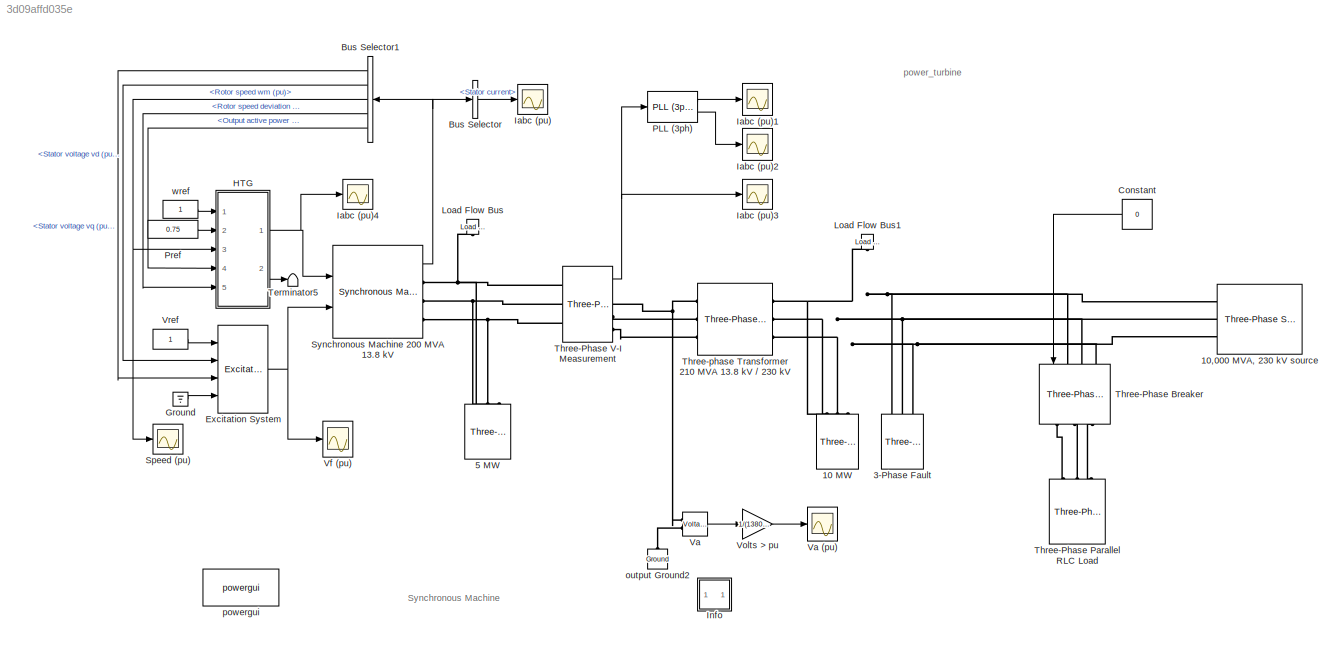
MODEL slx_3d09affd035e
KIND model
CONFIG AbsTol = auto
CONFIG EnableMultiTasking = off
CONFIG FixedStep = auto
CONFIG MaxStep = auto
CONFIG MinStep = auto
CONFIG RelTol = 1e-4
CONFIG SampleTimeConstraint = Unconstrained
CONFIG Solver = ode23tb
CONFIG SolverName = ode23tb
CONFIG StartTime = 0.0
CONFIG StopTime = 4
BLOCK [Scope]  Iabc (pu)
  Floating = off
  NumInputPorts = 1
  Ports = [1]
  ScopeSpecificationString = Simulink.scopes.TimeScopeBlockCfg('CurrentConfiguration', extmgr.ConfigurationSet(extmgr.Configuration('Core','General UI',true),extmgr.Configuration('Core','Source UI',true),extmgr.Configuration('Sources','WiredSimulink',true,'DataLoggingVariableName','ScopeData1','DataLoggingSaveFormat','Array','DataLoggingDecimation','1','DataLoggingDecimateData',true),extmgr.Configuration('Visuals','Time Domai...<+1772ch>
BLOCK [Scope]  Iabc (pu)1
  Floating = off
  NumInputPorts = 1
  Ports = [1]
  ScopeSpecificationString = Simulink.scopes.TimeScopeBlockCfg('CurrentConfiguration', extmgr.ConfigurationSet(extmgr.Configuration('Core','General UI',true),extmgr.Configuration('Core','Source UI',true),extmgr.Configuration('Sources','WiredSimulink',true,'DataLoggingVariableName','ScopeData2','DataLoggingSaveFormat','Array','DataLoggingDecimation','1','DataLoggingDecimateData',true),extmgr.Configuration('Visuals','Time Domai...<+1749ch>
BLOCK [Scope]  Iabc (pu)2
  Floating = off
  NumInputPorts = 1
  Ports = [1]
  ScopeSpecificationString = Simulink.scopes.TimeScopeBlockCfg('CurrentConfiguration', extmgr.ConfigurationSet(extmgr.Configuration('Core','General UI',true),extmgr.Configuration('Core','Source UI',true),extmgr.Configuration('Sources','WiredSimulink',true,'DataLoggingVariableName','ScopeData3','DataLoggingSaveFormat','Array','DataLoggingDecimation','1','DataLoggingDecimateData',true),extmgr.Configuration('Visuals','Time Domai...<+2521ch>
BLOCK [Scope]  Iabc (pu)3
  Floating = off
  NumInputPorts = 1
  Ports = [1]
  ScopeSpecificationString = Simulink.scopes.TimeScopeBlockCfg('CurrentConfiguration', extmgr.ConfigurationSet(extmgr.Configuration('Core','General UI',true),extmgr.Configuration('Core','Source UI',true),extmgr.Configuration('Sources','WiredSimulink',true,'DataLoggingVariableName','ScopeData4','DataLoggingSaveFormat','Array','DataLoggingDecimation','1','DataLoggingDecimateData',true),extmgr.Configuration('Visuals','Time Domai...<+2203ch>
BLOCK [Scope]  Iabc (pu)4
  Floating = off
  NumInputPorts = 1
  Ports = [1]
  ScopeSpecificationString = Simulink.scopes.TimeScopeBlockCfg('CurrentConfiguration', extmgr.ConfigurationSet(extmgr.Configuration('Core','General UI',true),extmgr.Configuration('Core','Source UI',true),extmgr.Configuration('Sources','WiredSimulink',true,'DataLoggingVariableName','ScopeData5','DataLoggingSaveFormat','Array','DataLoggingDecimation','1','DataLoggingDecimateData',true),extmgr.Configuration('Visuals','Time Domai...<+1698ch>
BLOCK [Scope]  Speed (pu)
  Floating = off
  NumInputPorts = 1
  Ports = [1]
  ScopeSpecificationString = Simulink.scopes.TimeScopeBlockCfg('CurrentConfiguration', extmgr.ConfigurationSet(extmgr.Configuration('Core','General UI',true),extmgr.Configuration('Core','Source UI',true),extmgr.Configuration('Sources','WiredSimulink',true,'DataLoggingVariableName','Pm','DataLoggingSaveFormat','Array','DataLoggingDecimation','1','DataLoggingDecimateData',true),extmgr.Configuration('Visuals','Time Domain',true,...<+1798ch>
BLOCK [Reference] 10 MW  REF=powerlib/Elements/Three-Phase
Parallel RLC Load
  AttributesFormatString = \n
  Ports = [0, 0, 0, 0, 0, 3]
  SourceBlock = powerlib/Elements/Three-Phase\nParallel RLC Load
  SourceProductBaseCode = PS
  SourceProductName = Simscape Power Systems
  SourceType = Three-Phase Parallel RLC Load
BLOCK [Reference] 10,000 MVA, 230 kV source  REF=powerlib/Electrical
Sources/Three-Phase Source
  Ports = [0, 0, 0, 0, 0, 0, 3]
  SourceBlock = powerlib/Electrical\nSources/Three-Phase Source
  SourceProductBaseCode = PS
  SourceProductName = Simscape Power Systems
  SourceType = Three-Phase Source
BLOCK [Reference] 3-Phase Fault  REF=powerlib/Elements/Three-Phase Fault
  Ports = [0, 0, 0, 0, 0, 3]
  SourceBlock = powerlib/Elements/Three-Phase Fault
  SourceProductBaseCode = PS
  SourceProductName = Simscape Power Systems
  SourceType = Three-Phase Fault
BLOCK [Reference] 5 MW  REF=powerlib/Elements/Three-Phase
Parallel RLC Load
  AttributesFormatString = \n
  Ports = [0, 0, 0, 0, 0, 3]
  SourceBlock = powerlib/Elements/Three-Phase\nParallel RLC Load
  SourceProductBaseCode = PS
  SourceProductName = Simscape Power Systems
  SourceType = Three-Phase Parallel RLC Load
BLOCK [BusSelector] Bus Selector
  OutputAsBus = off
  OutputSignals = Stator current
  Ports = [1, 1]
BLOCK [BusSelector] Bus Selector1
  OutputAsBus = off
  OutputSignals = dq0 components.Stator voltage  vq (pu),dq0 components.Stator voltage  vd (pu),Mechanical.Rotor speed  wm  (pu),Mechanical.Rotor speed deviation  dw (pu),Output active power   Peo (pu)
  Ports = [1, 5]
BLOCK [Constant] Constant
  Value = 0
BLOCK [Reference] Excitation System  REF=sps_avr/Excitation System
  Ports = [4, 1]
  SourceBlock = sps_avr/Excitation System
  SourceProductBaseCode = PS
  SourceProductName = Simscape Power Systems
  SourceType = Excitation System
BLOCK [Ground] Ground
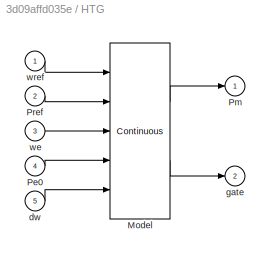
BLOCK [SubSystem] HTG
  AncestorBlock = powerlib/Machines/Hydraulic Turbine\nand Governor
  DialogController = POWERSYS.PowerSysDialog
  OpenFcn = sps_rtmsupport('OpenFcn',gcbh)
  Ports = [5, 2]
  RequestExecContextInheritance = off
BLOCK [Reference] HTG/Model  REF=spsHTGModel/Continuous
  Ports = [5, 2]
  SourceBlock = spsHTGModel/Continuous
  SourceType = Hydraulic Turbine and Governor
BLOCK [Inport] HTG/Pe0
  IconDisplay = Port number
  Port = 4
BLOCK [Outport] HTG/Pm
  IconDisplay = Port number
  InitialOutput = 0
BLOCK [Inport] HTG/Pref
  IconDisplay = Port number
  Port = 2
BLOCK [Inport] HTG/dw
  IconDisplay = Port number
  Port = 5
BLOCK [Outport] HTG/gate
  IconDisplay = Port number
  InitialOutput = 0
  Port = 2
BLOCK [Inport] HTG/we
  IconDisplay = Port number
  Port = 3
BLOCK [Inport] HTG/wref
  IconDisplay = Port number
BLOCK [SubSystem] Info
  OpenFcn = showdemo(bdroot(gcb))
  Ports = []
  RequestExecContextInheritance = off
BLOCK [Reference] Load Flow Bus  REF=powerlib/Measurements/Load Flow Bus
  AttributesFormatString = %<ID>\n%<Vbase>V\n%<VLF>pu\n%<angleLF>deg.
  Ports = [0, 0, 0, 0, 0, 1]
  SourceBlock = powerlib/Measurements/Load Flow Bus
  SourceProductBaseCode = PS
  SourceProductName = Simscape Power Systems
  SourceType = Load Flow Bus
BLOCK [Reference] Load Flow Bus1  REF=powerlib/Measurements/Load Flow Bus
  AttributesFormatString = %<ID>\n%<Vbase>V\n%<VLF>pu\n%<angleLF>deg.
  Ports = [0, 0, 0, 0, 0, 1]
  SourceBlock = powerlib/Measurements/Load Flow Bus
  SourceProductBaseCode = PS
  SourceProductName = Simscape Power Systems
  SourceType = Load Flow Bus
BLOCK [Reference] PLL (3ph)  REF=powerlib_meascontrol/PLL/PLL
(3ph)
  Ports = [1, 2]
  SourceBlock = powerlib_meascontrol/PLL/PLL\n(3ph)
  SourceProductBaseCode = PS
  SourceProductName = Simscape Power Systems
  SourceType = PLL (3ph)
BLOCK [Constant] Pref
  Value = 0.75
BLOCK [Reference] Synchronous Machine 200 MVA 13.8 kV  REF=powerlib/Machines/Synchronous Machine
pu Standard
  AttributesFormatString = \n\n
  Ports = [2, 1, 0, 0, 0, 0, 3]
  SourceBlock = powerlib/Machines/Synchronous Machine\npu Standard
  SourceProductBaseCode = PS
  SourceProductName = Simscape Power Systems
  SourceType = Synchronous Machine
BLOCK [Terminator] Terminator5
BLOCK [Reference] Three-Phase Breaker  REF=powerlib/Elements/Three-Phase Breaker
  Ports = [1, 0, 0, 0, 0, 3, 3]
  SourceBlock = powerlib/Elements/Three-Phase Breaker
  SourceProductBaseCode = PS
  SourceProductName = Simscape Power Systems
  SourceType = Three-Phase Breaker
BLOCK [Reference] Three-Phase Parallel RLC Load  REF=powerlib/Elements/Three-Phase
Parallel RLC Load
  AttributesFormatString = \n
  Ports = [0, 0, 0, 0, 0, 3]
  SourceBlock = powerlib/Elements/Three-Phase\nParallel RLC Load
  SourceProductBaseCode = PS
  SourceProductName = Simscape Power Systems
  SourceType = Three-Phase Parallel RLC Load
BLOCK [Reference] Three-Phase V-I Measurement  REF=powerlib/Measurements/Three-Phase
V-I Measurement
  Ports = [0, 2, 0, 0, 0, 3, 3]
  SourceBlock = powerlib/Measurements/Three-Phase\nV-I Measurement
  SourceProductBaseCode = PS
  SourceProductName = Simscape Power Systems
  SourceType = Three-Phase VI Measurement
BLOCK [Reference] Three-phase Transformer 210 MVA 13.8 kV // 230 kV  REF=powerlib/Elements/Three-Phase
Transformer
(Two Windings)
  AttributesFormatString = \n
  Ports = [0, 0, 0, 0, 0, 3, 3]
  SourceBlock = powerlib/Elements/Three-Phase\nTransformer\n(Two Windings)
  SourceProductBaseCode = PS
  SourceProductName = Simscape Power Systems
  SourceType = Three-Phase Transformer (Two Windings)
BLOCK [Reference] Va  REF=powerlib/Measurements/Voltage Measurement
  AttributesFormatString = \n
  Ports = [0, 1, 0, 0, 0, 2]
  SourceBlock = powerlib/Measurements/Voltage Measurement
  SourceProductBaseCode = PS
  SourceProductName = Simscape Power Systems
  SourceType = Voltage Measurement
  Tag = PoWeRsYsTeMmEaSuReMeNt
BLOCK [Scope] Va (pu)
  Floating = off
  NumInputPorts = 1
  Ports = [1]
  ScopeSpecificationString = Simulink.scopes.TimeScopeBlockCfg('CurrentConfiguration', extmgr.ConfigurationSet(extmgr.Configuration('Core','General UI',true),extmgr.Configuration('Core','Source UI',true),extmgr.Configuration('Sources','WiredSimulink',true,'DataLoggingVariableName','vf','DataLoggingSaveFormat','Array','DataLoggingDecimation','1','DataLoggingDecimateData',true),extmgr.Configuration('Visuals','Time Domain',true,...<+1668ch>
BLOCK [Scope] Vf (pu)
  Floating = off
  NumInputPorts = 1
  Ports = [1]
  ScopeSpecificationString = Simulink.scopes.TimeScopeBlockCfg('CurrentConfiguration', extmgr.ConfigurationSet(extmgr.Configuration('Core','General UI',true),extmgr.Configuration('Core','Source UI',true),extmgr.Configuration('Sources','WiredSimulink',true,'DataLoggingVariableName','vf','DataLoggingSaveFormat','Array','DataLoggingDecimation','1','DataLoggingDecimateData',true),extmgr.Configuration('Visuals','Time Domain',true,...<+1719ch>
BLOCK [Gain] Volts > pu
  Gain = 1/(13800/sqrt(3)*sqrt(2))
BLOCK [Constant] Vref
BLOCK [Reference] output Ground2  REF=powerlib/Elements/Ground
  AttributesFormatString = \n
  Ports = [0, 0, 0, 0, 0, 1]
  SourceBlock = powerlib/Elements/Ground
  SourceProductBaseCode = PS
  SourceProductName = Simscape Power Systems
  SourceType = Ground
BLOCK [Reference] powergui  REF=powerlib/powergui
  Ports = []
  Priority = 2
  SourceBlock = powerlib/powergui
  SourceProductBaseCode = PS
  SourceProductName = Simscape Power Systems
  SourceType = PSB option menu block
BLOCK [Constant] wref
ANNOTATION (root): power_turbine
ANNOTATION (root): Synchronous Machine
LINE Bus Selector1:1 -> Excitation System:3
LINE Bus Selector1:2 -> Excitation System:2
NET Bus Selector1:3 ->  Speed (pu):1, HTG:3
LINE Bus Selector1:4 -> HTG:5
LINE Bus Selector1:5 -> HTG:4
LINE Bus Selector:1 ->  Iabc (pu):1
LINE Constant:1 -> Three-Phase Breaker:1
NET Excitation System:1 -> Synchronous Machine 200 MVA 13.8 kV:2, Vf (pu):1
LINE Ground:1 -> Excitation System:4
NET HTG:1 ->  Iabc (pu)4:1, Synchronous Machine 200 MVA 13.8 kV:1
LINE HTG:2 -> Terminator5:1
LINE PLL (3ph):1 ->  Iabc (pu)1:1
LINE PLL (3ph):2 ->  Iabc (pu)2:1
LINE Pref:1 -> HTG:2
NET Synchronous Machine 200 MVA 13.8 kV:1 -> Bus Selector1:1, Bus Selector:1
NET Three-Phase V-I Measurement:1 ->  Iabc (pu)3:1, PLL (3ph):1
LINE Va:1 -> Volts > pu:1
LINE Volts > pu:1 -> Va (pu):1
LINE Vref:1 -> Excitation System:1
LINE wref:1 -> HTG:1
PNET net1: 10 MW:LConn1 -- 10,000 MVA, 230 kV source:RConn1 -- 3-Phase Fault:LConn1 -- Load Flow Bus1:LConn1 -- Three-Phase Breaker:LConn1 -- Three-phase Transformer 210 MVA 13.8 kV // 230 kV:RConn1
PNET net2: 10 MW:LConn2 -- 10,000 MVA, 230 kV source:RConn2 -- 3-Phase Fault:LConn2 -- Three-Phase Breaker:LConn2 -- Three-phase Transformer 210 MVA 13.8 kV // 230 kV:RConn2
PNET net3: 10 MW:LConn3 -- 10,000 MVA, 230 kV source:RConn3 -- 3-Phase Fault:LConn3 -- Three-Phase Breaker:LConn3 -- Three-phase Transformer 210 MVA 13.8 kV // 230 kV:RConn3
PNET net4: 5 MW:LConn1 -- Load Flow Bus:LConn1 -- Synchronous Machine 200 MVA 13.8 kV:RConn1 -- Three-Phase V-I Measurement:LConn1
PNET net5: 5 MW:LConn2 -- Synchronous Machine 200 MVA 13.8 kV:RConn2 -- Three-Phase V-I Measurement:LConn2
PNET net6: 5 MW:LConn3 -- Synchronous Machine 200 MVA 13.8 kV:RConn3 -- Three-Phase V-I Measurement:LConn3
PLINE Three-Phase Breaker:RConn1 -- Three-Phase Parallel RLC Load:LConn1
PLINE Three-Phase Breaker:RConn2 -- Three-Phase Parallel RLC Load:LConn2
PLINE Three-Phase Breaker:RConn3 -- Three-Phase Parallel RLC Load:LConn3
PNET net7: Three-Phase V-I Measurement:RConn1 -- Three-phase Transformer 210 MVA 13.8 kV // 230 kV:LConn1 -- Va:LConn1
PLINE Three-Phase V-I Measurement:RConn2 -- Three-phase Transformer 210 MVA 13.8 kV // 230 kV:LConn2
PLINE Three-Phase V-I Measurement:RConn3 -- Three-phase Transformer 210 MVA 13.8 kV // 230 kV:LConn3
PLINE Va:LConn2 -- output Ground2:LConn1
note: NET lines group one-source signal fan-out (src -> all destinations, sorted); 1:1 wires keep LINE; PNET lines group multi-terminal physical nets as a canonical sorted terminal list (undirected conserving connections); 2-terminal nets keep the pairwise PLINE form
